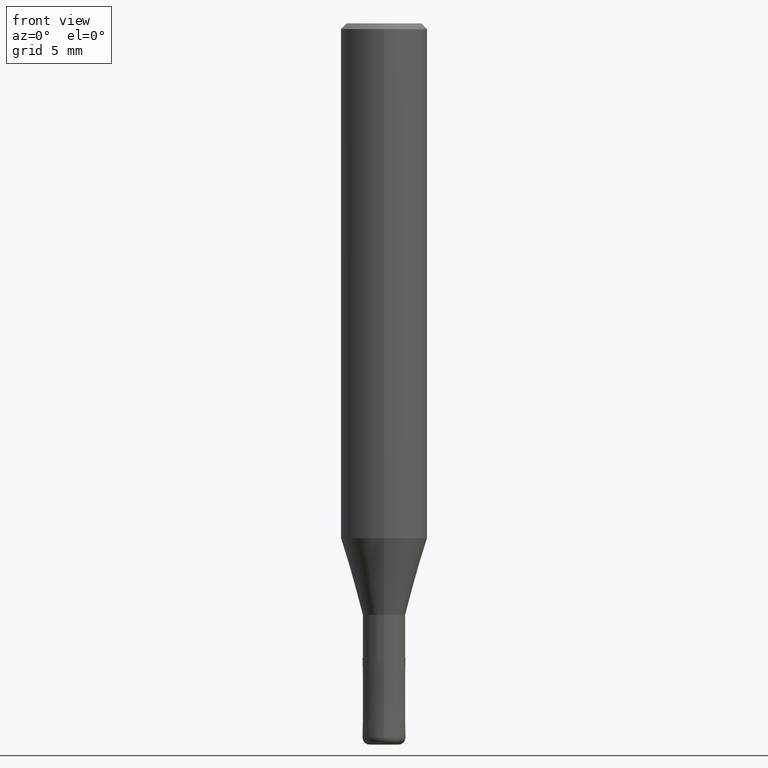
[diagram: clean part render]
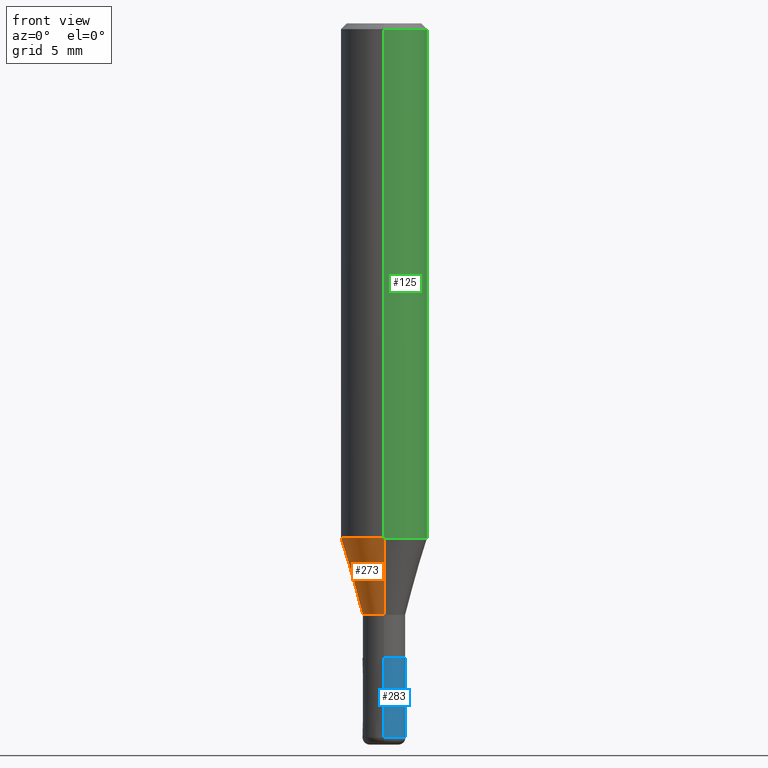
[diagram: same view with three faces highlighted in distinct colors, each labeled with its STEP entity id]
A machine part, front view with three faces highlighted in distinct colors.
Their STEP definitions:

[orange] entity #273 — the highlighted conical surface has half-angle 16.001 deg.
#129=VERTEX_POINT('',#333);
#149=EDGE_CURVE('',#203,#129,#355,.T.);
#173=EDGE_CURVE('',#203,#275,#382,.T.);
#187=VERTEX_POINT('',#397);
#203=VERTEX_POINT('',#414);
#247=EDGE_CURVE('',#187,#275,#464,.T.);
#269=EDGE_CURVE('',#129,#187,#490,.T.);
#273=ADVANCED_FACE('',(#496),#497,.T.);
#275=VERTEX_POINT('',#499);
#333=CARTESIAN_POINT('',(3.67375783114944E-016,-2.99995,-35.682));
#355=LINE('',#582,#583);
#382=CIRCLE('',#617,1.47495);
#397=CARTESIAN_POINT('',(0.0,2.99995,-35.682));
#414=CARTESIAN_POINT('',(1.80623314157032E-016,-1.47495,-41.0));
#464=LINE('',#725,#726);
#490=CIRCLE('',#758,2.99995);
#496=FACE_OUTER_BOUND('',#764,.T.);
#497=CONICAL_SURFACE('',#765,2.23745,0.279267977304115);
#499=CARTESIAN_POINT('',(0.0,1.47495,-41.0));
#582=CARTESIAN_POINT('',(2.73999548635988E-016,-2.23745,-38.341));
#583=VECTOR('',#844,1.0);
#617=AXIS2_PLACEMENT_3D('',#882,#883,#884);
#725=CARTESIAN_POINT('',(-2.73999548635988E-016,2.23745,-38.341));
#726=VECTOR('',#986,1.0);
#758=AXIS2_PLACEMENT_3D('',#1013,#1014,#1015);
#764=EDGE_LOOP('',(#1025,#1026,#1027,#1028));
#765=AXIS2_PLACEMENT_3D('',#1029,#1030,#1031);
#844=DIRECTION('',(3.37565264353533E-017,-0.275652060190515,0.961257479405349));
#882=CARTESIAN_POINT('',(0.0,0.0,-41.0));
#883=DIRECTION('',(0.0,0.0,-1.0));
#884=DIRECTION('',(0.0,1.0,0.0));
#986=DIRECTION('',(3.37565264353533E-017,-0.275652060190515,-0.961257479405349));
#1013=CARTESIAN_POINT('',(0.0,0.0,-35.682));
#1014=DIRECTION('',(0.0,0.0,-1.0));
#1015=DIRECTION('',(0.0,1.0,0.0));
#1025=ORIENTED_EDGE('',*,*,#247,.T.);
#1026=ORIENTED_EDGE('',*,*,#173,.F.);
#1027=ORIENTED_EDGE('',*,*,#149,.T.);
#1028=ORIENTED_EDGE('',*,*,#269,.T.);
#1029=CARTESIAN_POINT('',(0.0,0.0,-38.341));
#1030=DIRECTION('',(-0.0,-0.0,1.0));
#1031=DIRECTION('',(0.0,1.0,0.0));

[blue] entity #283 — the highlighted conical surface has half-angle 0.001 deg.
#151=VERTEX_POINT('',#357);
#153=EDGE_CURVE('',#263,#255,#359,.T.);
#181=EDGE_CURVE('',#195,#263,#390,.T.);
#195=VERTEX_POINT('',#406);
#243=EDGE_CURVE('',#255,#151,#459,.T.);
#255=VERTEX_POINT('',#472);
#261=EDGE_CURVE('',#195,#151,#480,.T.);
#263=VERTEX_POINT('',#482);
#283=ADVANCED_FACE('',(#508),#509,.T.);
#357=CARTESIAN_POINT('',(1.83678707009818E-016,-1.4999,-44.0));
#359=CIRCLE('',#588,1.5);
#390=LINE('',#628,#629);
#406=CARTESIAN_POINT('',(0.0,1.4999,-44.0));
#459=LINE('',#718,#719);
#472=CARTESIAN_POINT('',(1.83690953073357E-016,-1.5,-49.5));
#480=CIRCLE('',#747,1.4999);
#482=CARTESIAN_POINT('',(0.0,1.5,-49.5));
#508=FACE_OUTER_BOUND('',#778,.T.);
#509=CONICAL_SURFACE('',#779,1.49995,1.81818181798127E-005);
#588=AXIS2_PLACEMENT_3D('',#845,#846,#847);
#628=CARTESIAN_POINT('',(-1.83684830041587E-016,1.49995,-46.75));
#629=VECTOR('',#891,1.0);
#718=CARTESIAN_POINT('',(1.83684830041587E-016,-1.49995,-46.75));
#719=VECTOR('',#977,1.0);
#747=AXIS2_PLACEMENT_3D('',#1002,#1003,#1004);
#778=EDGE_LOOP('',(#1042,#1043,#1044,#1045));
#779=AXIS2_PLACEMENT_3D('',#1046,#1047,#1048);
#845=CARTESIAN_POINT('',(0.0,0.0,-49.5));
#846=DIRECTION('',(0.0,0.0,-1.0));
#847=DIRECTION('',(0.0,1.0,0.0));
#891=DIRECTION('',(-2.22655700658151E-021,1.81818181788109E-005,-0.999999999834711));
#977=DIRECTION('',(-2.22655700658151E-021,1.81818181788109E-005,0.999999999834711));
#1002=CARTESIAN_POINT('',(0.0,0.0,-44.0));
#1003=DIRECTION('',(0.0,0.0,-1.0));
#1004=DIRECTION('',(0.0,1.0,0.0));
#1042=ORIENTED_EDGE('',*,*,#181,.F.);
#1043=ORIENTED_EDGE('',*,*,#261,.T.);
#1044=ORIENTED_EDGE('',*,*,#243,.F.);
#1045=ORIENTED_EDGE('',*,*,#153,.F.);
#1046=CARTESIAN_POINT('',(0.0,0.0,-46.75));
#1047=DIRECTION('',(0.0,-0.0,-1.0));
#1048=DIRECTION('',(0.0,1.0,0.0));

[green] entity #125 — the highlighted cylindrical surface (partial cylindrical patch) has radius 3 mm, axis along (-0, -0, 1).
#125=ADVANCED_FACE('',(#328),#329,.T.);
#175=VERTEX_POINT('',#384);
#185=EDGE_CURVE('',#175,#279,#395,.T.);
#199=EDGE_CURVE('',#175,#215,#410,.T.);
#205=EDGE_CURVE('',#279,#211,#416,.T.);
#211=VERTEX_POINT('',#422);
#215=VERTEX_POINT('',#427);
#259=EDGE_CURVE('',#211,#215,#478,.T.);
#279=VERTEX_POINT('',#503);
#328=FACE_OUTER_BOUND('',#549,.T.);
#329=CYLINDRICAL_SURFACE('',#550,3.0);
#384=CARTESIAN_POINT('',(0.0,3.0,-0.399999999999999));
#395=LINE('',#635,#636);
#410=CIRCLE('',#657,3.0);
#416=CIRCLE('',#665,3.0);
#422=CARTESIAN_POINT('',(3.67381906146713E-016,-3.0,-35.682));
#427=CARTESIAN_POINT('',(3.67381906146713E-016,-3.0,-0.399999999999999));
#478=LINE('',#743,#744);
#503=CARTESIAN_POINT('',(0.0,3.0,-35.682));
#549=EDGE_LOOP('',(#814,#815,#816,#817));
#550=AXIS2_PLACEMENT_3D('',#818,#819,#820);
#635=CARTESIAN_POINT('',(-3.67381906146713E-016,3.0,-18.041));
#636=VECTOR('',#900,1.0);
#657=AXIS2_PLACEMENT_3D('',#914,#915,#916);
#665=AXIS2_PLACEMENT_3D('',#920,#921,#922);
#743=CARTESIAN_POINT('',(3.67381906146713E-016,-3.0,-18.041));
#744=VECTOR('',#1001,1.0);
#814=ORIENTED_EDGE('',*,*,#185,.F.);
#815=ORIENTED_EDGE('',*,*,#199,.T.);
#816=ORIENTED_EDGE('',*,*,#259,.F.);
#817=ORIENTED_EDGE('',*,*,#205,.F.);
#818=CARTESIAN_POINT('',(0.0,0.0,-18.041));
#819=DIRECTION('',(-0.0,-0.0,1.0));
#820=DIRECTION('',(0.0,1.0,0.0));
#900=DIRECTION('',(0.0,0.0,-1.0));
#914=CARTESIAN_POINT('',(0.0,0.0,-0.399999999999999));
#915=DIRECTION('',(0.0,0.0,-1.0));
#916=DIRECTION('',(0.0,1.0,0.0));
#920=CARTESIAN_POINT('',(0.0,0.0,-35.682));
#921=DIRECTION('',(0.0,0.0,-1.0));
#922=DIRECTION('',(0.0,1.0,0.0));
#1001=DIRECTION('',(-0.0,-0.0,1.0));